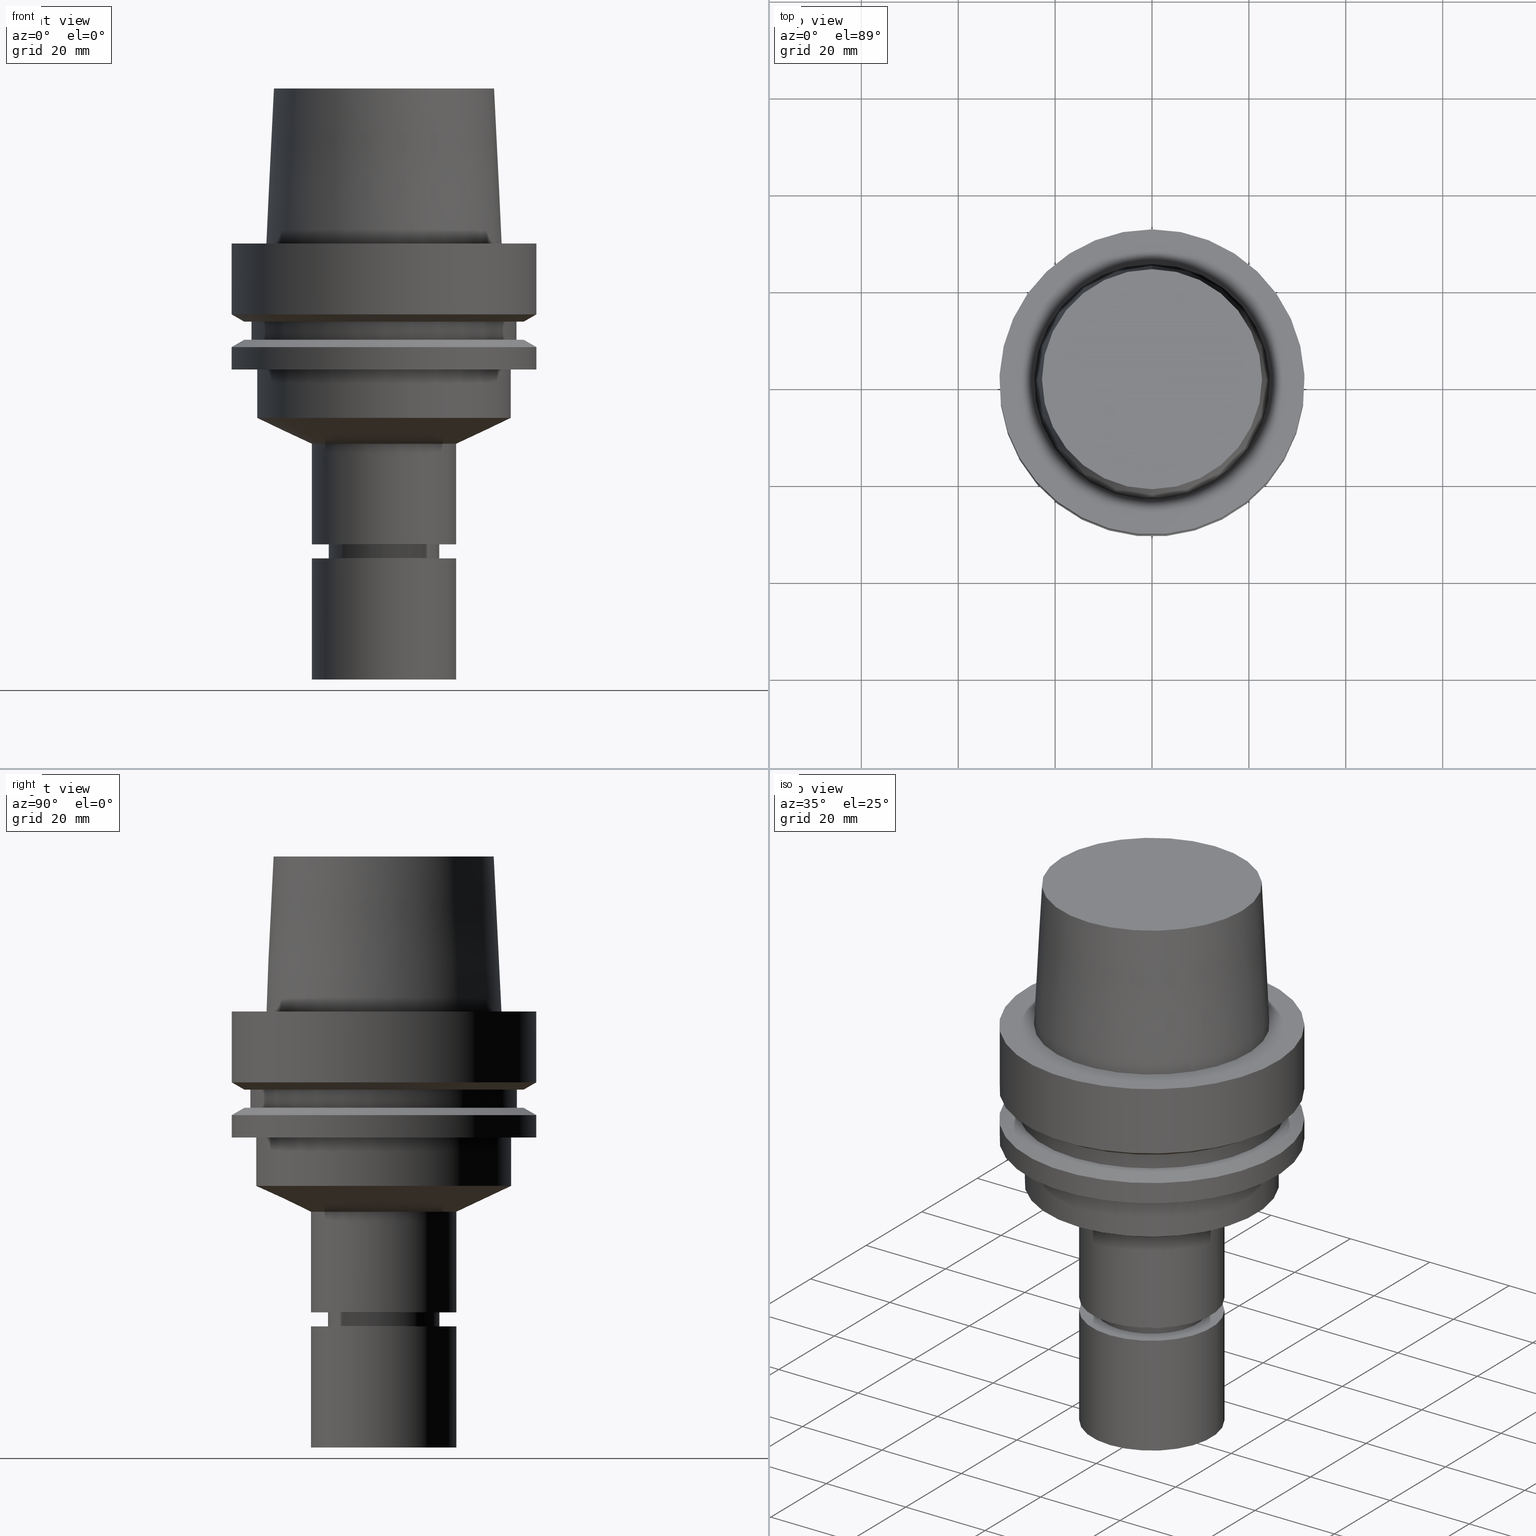
[diagram: canonical four-view strip — front | top / right | iso, engineering-drawing reading convention]
A machine part, canonical four-view strip (front | top / right | iso — engineering-drawing reading convention). The complete STEP part file that produces these views, byte-faithful:
ISO-10303-21;
HEADER;
FILE_DESCRIPTION((''),'1');
FILE_NAME('V:/90_\X2\53D65F9730C730FC30BF\X0\/00_\X2\6DE18DEF30C730FC30BF\X0\/ALL/HSK-BKUS\X2\52A05DE556F3\X0\_201801/HSK-A63-MEGAER/HSK-A63-MEGAER16-90NL.stp','2018-02-01T02:21:57',(''),(''),'Spatial Interop R21 SP3','Kubotek KeyCreator 2011 V10.0.2 (22737)',' ');
FILE_SCHEMA(('automotive_design'));
ENDSEC;
DATA;
#1=MECHANICAL_DESIGN_GEOMETRIC_PRESENTATION_REPRESENTATION(' ',(#14,#15,#16,#17,#18,#19,#20,#21,#22,#23,#24,#25,#26,#27,#28,#29,#30,#31,#32,#33,#34,#35,#36,#37,#38,#39,#40,#41,#42,#43,#44,#45,#46,#47,#48,#49,#50,#51,#52,#53,#54,#55,#56,#57,#58,#59),#10);
#2=PRODUCT_DEFINITION_CONTEXT('',#60,'design');
#3=APPLICATION_PROTOCOL_DEFINITION('INTERNATIONAL STANDARD','automotive_design',1994,#60);
#4=PRODUCT_CATEGORY_RELATIONSHIP('NONE','NONE',#61,#62);
#5=SHAPE_DEFINITION_REPRESENTATION(#63,#64);
#6=PRODUCT_DEFINITION_CONTEXT('',#65,'design');
#7=APPLICATION_PROTOCOL_DEFINITION('INTERNATIONAL STANDARD','automotive_design',1994,#65);
#8=PRODUCT_CATEGORY_RELATIONSHIP('NONE','NONE',#66,#67);
#9=SHAPE_DEFINITION_REPRESENTATION(#68,#69);
#10= (GEOMETRIC_REPRESENTATION_CONTEXT(3)GLOBAL_UNCERTAINTY_ASSIGNED_CONTEXT((#72))GLOBAL_UNIT_ASSIGNED_CONTEXT((#74,#75,#76))REPRESENTATION_CONTEXT('NONE','WORKSPACE'));
#14=STYLED_ITEM('',(#78),#79);
#15=STYLED_ITEM('',(#80,#81),#82);
#16=STYLED_ITEM('',(#83),#84);
#17=STYLED_ITEM('',(#85,#86),#87);
#18=STYLED_ITEM('',(#88),#89);
#19=STYLED_ITEM('',(#90,#91),#92);
#20=STYLED_ITEM('',(#93),#94);
#21=STYLED_ITEM('',(#95,#96),#97);
#22=STYLED_ITEM('',(#98),#99);
#23=STYLED_ITEM('',(#100,#101),#102);
#24=STYLED_ITEM('',(#103),#104);
#25=STYLED_ITEM('',(#105,#106),#107);
#26=STYLED_ITEM('',(#108),#109);
#27=STYLED_ITEM('',(#110),#111);
#28=STYLED_ITEM('',(#112),#113);
#29=STYLED_ITEM('',(#114,#115),#116);
#30=STYLED_ITEM('',(#117,#118),#119);
#31=STYLED_ITEM('',(#120,#121),#122);
#32=STYLED_ITEM('',(#123,#124),#125);
#33=STYLED_ITEM('',(#126,#127),#128);
#34=STYLED_ITEM('',(#129,#130),#131);
#35=STYLED_ITEM('',(#132),#133);
#36=STYLED_ITEM('',(#134,#135),#136);
#37=STYLED_ITEM('',(#137,#138),#139);
#38=STYLED_ITEM('',(#140),#141);
#39=STYLED_ITEM('',(#142),#143);
#40=STYLED_ITEM('',(#144,#145),#146);
#41=STYLED_ITEM('',(#147),#148);
#42=STYLED_ITEM('',(#149,#150),#151);
#43=STYLED_ITEM('',(#152,#153),#154);
#44=STYLED_ITEM('',(#155),#156);
#45=STYLED_ITEM('',(#157),#158);
#46=STYLED_ITEM('',(#159),#160);
#47=STYLED_ITEM('',(#161),#162);
#48=STYLED_ITEM('',(#163,#164),#165);
#49=STYLED_ITEM('',(#166,#167),#168);
#50=STYLED_ITEM('',(#169,#170),#171);
#51=STYLED_ITEM('',(#172),#173);
#52=STYLED_ITEM('',(#174,#175),#176);
#53=STYLED_ITEM('',(#177),#178);
#54=STYLED_ITEM('',(#179,#180),#181);
#55=STYLED_ITEM('',(#182,#183),#184);
#56=STYLED_ITEM('',(#185,#186),#187);
#57=STYLED_ITEM('',(#188),#189);
#58=STYLED_ITEM('',(#190),#191);
#59=STYLED_ITEM('',(#192,#193),#194);
#60=APPLICATION_CONTEXT(' ');
#61=PRODUCT_CATEGORY('part','NONE');
#62=PRODUCT_RELATED_PRODUCT_CATEGORY('detail',' ',(#195));
#63=PRODUCT_DEFINITION_SHAPE('NONE','NONE',#196);
#64=ADVANCED_BREP_SHAPE_REPRESENTATION('Unnamed[1]',(#125,#197),#10);
#65=APPLICATION_CONTEXT(' ');
#66=PRODUCT_CATEGORY('part','NONE');
#67=PRODUCT_RELATED_PRODUCT_CATEGORY('detail',' ',(#198));
#68=PRODUCT_DEFINITION_SHAPE('NONE','NONE',#199);
#69=ADVANCED_BREP_SHAPE_REPRESENTATION('Unnamed[1]',(#97,#200),#10);
#72=UNCERTAINTY_MEASURE_WITH_UNIT(LENGTH_MEASURE(1.0E-006),#74,'','');
#74= (CONVERSION_BASED_UNIT('MILLIMETRE',#203)LENGTH_UNIT()NAMED_UNIT(#206));
#75= (NAMED_UNIT(#208)PLANE_ANGLE_UNIT()SI_UNIT($,.RADIAN.));
#76= (NAMED_UNIT(#208)SOLID_ANGLE_UNIT()SI_UNIT($,.STERADIAN.));
#78=PRESENTATION_STYLE_ASSIGNMENT((#214));
#79=EDGE_CURVE('Unnamed[1]',#215,#215,#216,.T.);
#80=PRESENTATION_STYLE_ASSIGNMENT((#217));
#81=PRESENTATION_STYLE_ASSIGNMENT((#218));
#82=ADVANCED_FACE('Unnamed[1]',(#219,#220),#221,.T.);
#83=PRESENTATION_STYLE_ASSIGNMENT((#222));
#84=EDGE_CURVE('Unnamed[1]',#223,#223,#224,.T.);
#85=PRESENTATION_STYLE_ASSIGNMENT((#225));
#86=PRESENTATION_STYLE_ASSIGNMENT((#226));
#87=ADVANCED_FACE('Unnamed[1]',(#227,#228),#229,.T.);
#88=PRESENTATION_STYLE_ASSIGNMENT((#230));
#89=EDGE_CURVE('Unnamed[1]',#231,#231,#232,.T.);
#90=PRESENTATION_STYLE_ASSIGNMENT((#233));
#91=PRESENTATION_STYLE_ASSIGNMENT((#234));
#92=ADVANCED_FACE('Unnamed[1]',(#235),#236,.T.);
#93=PRESENTATION_STYLE_ASSIGNMENT((#237));
#94=EDGE_CURVE('Unnamed[1]',#238,#238,#239,.T.);
#95=PRESENTATION_STYLE_ASSIGNMENT((#240));
#96=PRESENTATION_STYLE_ASSIGNMENT((#241));
#97=MANIFOLD_SOLID_BREP('Unnamed[1]',#242);
#98=PRESENTATION_STYLE_ASSIGNMENT((#243));
#99=EDGE_CURVE('Unnamed[1]',#244,#244,#245,.T.);
#100=PRESENTATION_STYLE_ASSIGNMENT((#246));
#101=PRESENTATION_STYLE_ASSIGNMENT((#247));
#102=ADVANCED_FACE('Unnamed[1]',(#248,#249),#250,.T.);
#103=PRESENTATION_STYLE_ASSIGNMENT((#251));
#104=EDGE_CURVE('Unnamed[1]',#252,#252,#253,.T.);
#105=PRESENTATION_STYLE_ASSIGNMENT((#254));
#106=PRESENTATION_STYLE_ASSIGNMENT((#255));
#107=ADVANCED_FACE('Unnamed[1]',(#256,#257),#258,.T.);
#108=PRESENTATION_STYLE_ASSIGNMENT((#259));
#109=EDGE_CURVE('Unnamed[1]',#260,#260,#261,.T.);
#110=PRESENTATION_STYLE_ASSIGNMENT((#262));
#111=EDGE_CURVE('Unnamed[1]',#263,#263,#264,.T.);
#112=PRESENTATION_STYLE_ASSIGNMENT((#265));
#113=EDGE_CURVE('Unnamed[1]',#266,#266,#267,.T.);
#114=PRESENTATION_STYLE_ASSIGNMENT((#268));
#115=PRESENTATION_STYLE_ASSIGNMENT((#269));
#116=ADVANCED_FACE('Unnamed[1]',(#270,#271),#272,.T.);
#117=PRESENTATION_STYLE_ASSIGNMENT((#273));
#118=PRESENTATION_STYLE_ASSIGNMENT((#274));
#119=ADVANCED_FACE('Unnamed[1]',(#275,#276),#277,.T.);
#120=PRESENTATION_STYLE_ASSIGNMENT((#278));
#121=PRESENTATION_STYLE_ASSIGNMENT((#279));
#122=ADVANCED_FACE('Unnamed[1]',(#280,#281),#282,.T.);
#123=PRESENTATION_STYLE_ASSIGNMENT((#283));
#124=PRESENTATION_STYLE_ASSIGNMENT((#284));
#125=MANIFOLD_SOLID_BREP('Unnamed[1]',#285);
#126=PRESENTATION_STYLE_ASSIGNMENT((#286));
#127=PRESENTATION_STYLE_ASSIGNMENT((#287));
#128=ADVANCED_FACE('Unnamed[1]',(#288),#289,.T.);
#129=PRESENTATION_STYLE_ASSIGNMENT((#290));
#130=PRESENTATION_STYLE_ASSIGNMENT((#291));
#131=ADVANCED_FACE('Unnamed[1]',(#292,#293),#294,.T.);
#132=PRESENTATION_STYLE_ASSIGNMENT((#295));
#133=EDGE_CURVE('Unnamed[1]',#296,#296,#297,.T.);
#134=PRESENTATION_STYLE_ASSIGNMENT((#298));
#135=PRESENTATION_STYLE_ASSIGNMENT((#299));
#136=ADVANCED_FACE('Unnamed[1]',(#300,#301),#302,.T.);
#137=PRESENTATION_STYLE_ASSIGNMENT((#303));
#138=PRESENTATION_STYLE_ASSIGNMENT((#304));
#139=ADVANCED_FACE('Unnamed[1]',(#305,#306),#307,.T.);
#140=PRESENTATION_STYLE_ASSIGNMENT((#308));
#141=EDGE_CURVE('Unnamed[1]',#309,#309,#310,.T.);
#142=PRESENTATION_STYLE_ASSIGNMENT((#311));
#143=EDGE_CURVE('Unnamed[1]',#312,#312,#313,.T.);
#144=PRESENTATION_STYLE_ASSIGNMENT((#314));
#145=PRESENTATION_STYLE_ASSIGNMENT((#315));
#146=ADVANCED_FACE('Unnamed[1]',(#316,#317),#318,.T.);
#147=PRESENTATION_STYLE_ASSIGNMENT((#319));
#148=EDGE_CURVE('Unnamed[1]',#320,#320,#321,.T.);
#149=PRESENTATION_STYLE_ASSIGNMENT((#322));
#150=PRESENTATION_STYLE_ASSIGNMENT((#323));
#151=ADVANCED_FACE('Unnamed[1]',(#324,#325),#326,.T.);
#152=PRESENTATION_STYLE_ASSIGNMENT((#327));
#153=PRESENTATION_STYLE_ASSIGNMENT((#328));
#154=ADVANCED_FACE('Unnamed[1]',(#329,#330),#331,.T.);
#155=PRESENTATION_STYLE_ASSIGNMENT((#332));
#156=EDGE_CURVE('Unnamed[1]',#333,#333,#334,.T.);
#157=PRESENTATION_STYLE_ASSIGNMENT((#335));
#158=EDGE_CURVE('Unnamed[1]',#336,#336,#337,.T.);
#159=PRESENTATION_STYLE_ASSIGNMENT((#338));
#160=EDGE_CURVE('Unnamed[1]',#339,#339,#340,.T.);
#161=PRESENTATION_STYLE_ASSIGNMENT((#341));
#162=EDGE_CURVE('Unnamed[1]',#342,#342,#343,.T.);
#163=PRESENTATION_STYLE_ASSIGNMENT((#344));
#164=PRESENTATION_STYLE_ASSIGNMENT((#345));
#165=ADVANCED_FACE('Unnamed[1]',(#346,#347),#348,.T.);
#166=PRESENTATION_STYLE_ASSIGNMENT((#349));
#167=PRESENTATION_STYLE_ASSIGNMENT((#350));
#168=ADVANCED_FACE('Unnamed[1]',(#351,#352),#353,.T.);
#169=PRESENTATION_STYLE_ASSIGNMENT((#354));
#170=PRESENTATION_STYLE_ASSIGNMENT((#355));
#171=ADVANCED_FACE('Unnamed[1]',(#356,#357),#358,.T.);
#172=PRESENTATION_STYLE_ASSIGNMENT((#359));
#173=EDGE_CURVE('Unnamed[1]',#360,#360,#361,.T.);
#174=PRESENTATION_STYLE_ASSIGNMENT((#362));
#175=PRESENTATION_STYLE_ASSIGNMENT((#363));
#176=ADVANCED_FACE('Unnamed[1]',(#364,#365),#366,.T.);
#177=PRESENTATION_STYLE_ASSIGNMENT((#367));
#178=EDGE_CURVE('Unnamed[1]',#368,#368,#369,.T.);
#179=PRESENTATION_STYLE_ASSIGNMENT((#370));
#180=PRESENTATION_STYLE_ASSIGNMENT((#371));
#181=ADVANCED_FACE('Unnamed[1]',(#372,#373),#374,.T.);
#182=PRESENTATION_STYLE_ASSIGNMENT((#375));
#183=PRESENTATION_STYLE_ASSIGNMENT((#376));
#184=ADVANCED_FACE('Unnamed[1]',(#377,#378),#379,.T.);
#185=PRESENTATION_STYLE_ASSIGNMENT((#380));
#186=PRESENTATION_STYLE_ASSIGNMENT((#381));
#187=ADVANCED_FACE('Unnamed[1]',(#382),#383,.T.);
#188=PRESENTATION_STYLE_ASSIGNMENT((#384));
#189=EDGE_CURVE('Unnamed[1]',#385,#385,#386,.T.);
#190=PRESENTATION_STYLE_ASSIGNMENT((#387));
#191=EDGE_CURVE('Unnamed[1]',#388,#388,#389,.T.);
#192=PRESENTATION_STYLE_ASSIGNMENT((#390));
#193=PRESENTATION_STYLE_ASSIGNMENT((#391));
#194=ADVANCED_FACE('Unnamed[1]',(#392),#393,.T.);
#195=PRODUCT('Unnamed[1]','Unnamed[1]','PART-Unnamed[1]-DESC',(#394));
#196=PRODUCT_DEFINITION('NONE','NONE',#395,#2);
#197=AXIS2_PLACEMENT_3D('',#396,#397,#398);
#198=PRODUCT('Unnamed[1]','Unnamed[1]','PART-Unnamed[1]-DESC',(#399));
#199=PRODUCT_DEFINITION('NONE','NONE',#400,#6);
#200=AXIS2_PLACEMENT_3D('',#401,#402,#403);
#203=LENGTH_MEASURE_WITH_UNIT(LENGTH_MEASURE(1.0),#404);
#206=DIMENSIONAL_EXPONENTS(1.0,0.0,0.0,0.0,0.0,0.0,0.0);
#208=DIMENSIONAL_EXPONENTS(0.0,0.0,0.0,0.0,0.0,0.0,0.0);
#214=CURVE_STYLE('',#405,POSITIVE_LENGTH_MEASURE(1000.0),#406);
#215=VERTEX_POINT('',#407);
#216=CIRCLE('',#408,9.89999999999962);
#217=SURFACE_STYLE_USAGE(.BOTH.,#409);
#218=CURVE_STYLE('',#410,POSITIVE_LENGTH_MEASURE(1000.0),#411);
#219=FACE_BOUND('',#412,.T.);
#220=FACE_BOUND('',#413,.T.);
#221=CYLINDRICAL_SURFACE('',#414,26.3);
#222=CURVE_STYLE('',#415,POSITIVE_LENGTH_MEASURE(1000.0),#416);
#223=VERTEX_POINT('',#417);
#224=CIRCLE('',#418,10.9999999999999);
#225=SURFACE_STYLE_USAGE(.BOTH.,#419);
#226=CURVE_STYLE('',#420,POSITIVE_LENGTH_MEASURE(1000.0),#421);
#227=FACE_BOUND('',#422,.T.);
#228=FACE_BOUND('',#423,.T.);
#229=CYLINDRICAL_SURFACE('',#424,27.4999999999994);
#230=CURVE_STYLE('',#425,POSITIVE_LENGTH_MEASURE(1000.0),#426);
#231=VERTEX_POINT('',#427);
#232=CIRCLE('',#428,28.8975952641919);
#233=SURFACE_STYLE_USAGE(.BOTH.,#429);
#234=CURVE_STYLE('',#430,POSITIVE_LENGTH_MEASURE(1000.0),#431);
#235=FACE_OUTER_BOUND('',#432,.T.);
#236=PLANE('',#433);
#237=CURVE_STYLE('',#434,POSITIVE_LENGTH_MEASURE(1000.0),#435);
#238=VERTEX_POINT('',#436);
#239=CIRCLE('',#437,31.5000000000001);
#240=SURFACE_STYLE_USAGE(.BOTH.,#438);
#241=CURVE_STYLE('',#439,POSITIVE_LENGTH_MEASURE(1000.0),#440);
#242=CLOSED_SHELL('',(#92,#128,#136));
#243=CURVE_STYLE('',#441,POSITIVE_LENGTH_MEASURE(1000.0),#442);
#244=VERTEX_POINT('',#443);
#245=CIRCLE('',#444,27.4999999999989);
#246=SURFACE_STYLE_USAGE(.BOTH.,#445);
#247=CURVE_STYLE('',#446,POSITIVE_LENGTH_MEASURE(1000.0),#447);
#248=FACE_BOUND('',#448,.T.);
#249=FACE_BOUND('',#449,.T.);
#250=CYLINDRICAL_SURFACE('',#450,31.4999999999999);
#251=CURVE_STYLE('',#451,POSITIVE_LENGTH_MEASURE(1000.0),#452);
#252=VERTEX_POINT('',#453);
#253=CIRCLE('',#454,15.0000000000002);
#254=SURFACE_STYLE_USAGE(.BOTH.,#455);
#255=CURVE_STYLE('',#456,POSITIVE_LENGTH_MEASURE(1000.0),#457);
#256=FACE_BOUND('',#458,.T.);
#257=FACE_BOUND('',#459,.T.);
#258=CONICAL_SURFACE('',#460,23.515,0.0499583957219433);
#259=CURVE_STYLE('',#461,POSITIVE_LENGTH_MEASURE(1000.0),#462);
#260=VERTEX_POINT('',#463);
#261=CIRCLE('',#464,15.0);
#262=CURVE_STYLE('',#465,POSITIVE_LENGTH_MEASURE(1000.0),#466);
#263=VERTEX_POINT('',#467);
#264=CIRCLE('',#468,11.4999999999907);
#265=CURVE_STYLE('',#469,POSITIVE_LENGTH_MEASURE(1000.0),#470);
#266=VERTEX_POINT('',#471);
#267=CIRCLE('',#472,26.3);
#268=SURFACE_STYLE_USAGE(.BOTH.,#473);
#269=CURVE_STYLE('',#474,POSITIVE_LENGTH_MEASURE(1000.0),#475);
#270=FACE_BOUND('',#476,.T.);
#271=FACE_BOUND('',#477,.T.);
#272=CONICAL_SURFACE('',#478,20.6500000000001,1.13007312047941);
#273=SURFACE_STYLE_USAGE(.BOTH.,#479);
#274=CURVE_STYLE('',#480,POSITIVE_LENGTH_MEASURE(1000.0),#481);
#275=FACE_BOUND('',#482,.T.);
#276=FACE_BOUND('',#483,.T.);
#277=CONICAL_SURFACE('',#484,11.250000000001,1.04719755118896);
#278=SURFACE_STYLE_USAGE(.BOTH.,#485);
#279=CURVE_STYLE('',#486,POSITIVE_LENGTH_MEASURE(1000.0),#487);
#280=FACE_BOUND('',#488,.T.);
#281=FACE_BOUND('',#489,.T.);
#282=CYLINDRICAL_SURFACE('',#490,31.5);
#283=SURFACE_STYLE_USAGE(.BOTH.,#491);
#284=CURVE_STYLE('',#492,POSITIVE_LENGTH_MEASURE(1000.0),#493);
#285=CLOSED_SHELL('',(#194,#184,#154,#119,#146,#131,#181,#116,#82,#139,#102,#165,#151,#87,#171,#168,#122,#176,#107,#187));
#286=SURFACE_STYLE_USAGE(.BOTH.,#494);
#287=CURVE_STYLE('',#495,POSITIVE_LENGTH_MEASURE(1000.0),#496);
#288=FACE_OUTER_BOUND('',#497,.T.);
#289=PLANE('',#498);
#290=SURFACE_STYLE_USAGE(.BOTH.,#499);
#291=CURVE_STYLE('',#500,POSITIVE_LENGTH_MEASURE(1000.0),#501);
#292=FACE_OUTER_BOUND('',#502,.T.);
#293=FACE_BOUND('',#503,.T.);
#294=PLANE('',#504);
#295=CURVE_STYLE('',#505,POSITIVE_LENGTH_MEASURE(1000.0),#506);
#296=VERTEX_POINT('',#507);
#297=CIRCLE('',#508,15.0000000000001);
#298=SURFACE_STYLE_USAGE(.BOTH.,#509);
#299=CURVE_STYLE('',#510,POSITIVE_LENGTH_MEASURE(1000.0),#511);
#300=FACE_BOUND('',#512,.T.);
#301=FACE_BOUND('',#513,.T.);
#302=CYLINDRICAL_SURFACE('',#514,15.0);
#303=SURFACE_STYLE_USAGE(.BOTH.,#515);
#304=CURVE_STYLE('',#516,POSITIVE_LENGTH_MEASURE(1000.0),#517);
#305=FACE_OUTER_BOUND('',#518,.T.);
#306=FACE_BOUND('',#519,.T.);
#307=PLANE('',#520);
#308=CURVE_STYLE('',#521,POSITIVE_LENGTH_MEASURE(1000.0),#522);
#309=VERTEX_POINT('',#523);
#310=CIRCLE('',#524,15.0000000000001);
#311=CURVE_STYLE('',#525,POSITIVE_LENGTH_MEASURE(1000.0),#526);
#312=VERTEX_POINT('',#527);
#313=CIRCLE('',#528,31.4999999999998);
#314=SURFACE_STYLE_USAGE(.BOTH.,#529);
#315=CURVE_STYLE('',#530,POSITIVE_LENGTH_MEASURE(1000.0),#531);
#316=FACE_BOUND('',#532,.T.);
#317=FACE_BOUND('',#533,.T.);
#318=CYLINDRICAL_SURFACE('',#534,11.4999999999964);
#319=CURVE_STYLE('',#535,POSITIVE_LENGTH_MEASURE(1000.0),#536);
#320=VERTEX_POINT('',#537);
#321=CIRCLE('',#538,31.5);
#322=SURFACE_STYLE_USAGE(.BOTH.,#539);
#323=CURVE_STYLE('',#540,POSITIVE_LENGTH_MEASURE(1000.0),#541);
#324=FACE_BOUND('',#542,.T.);
#325=FACE_OUTER_BOUND('',#543,.T.);
#326=PLANE('',#544);
#327=SURFACE_STYLE_USAGE(.BOTH.,#545);
#328=CURVE_STYLE('',#546,POSITIVE_LENGTH_MEASURE(1000.0),#547);
#329=FACE_BOUND('',#548,.T.);
#330=FACE_BOUND('',#549,.T.);
#331=CYLINDRICAL_SURFACE('',#550,11.0000000000001);
#332=CURVE_STYLE('',#551,POSITIVE_LENGTH_MEASURE(1000.0),#552);
#333=VERTEX_POINT('',#553);
#334=CIRCLE('',#554,11.0000000000003);
#335=CURVE_STYLE('',#555,POSITIVE_LENGTH_MEASURE(1000.0),#556);
#336=VERTEX_POINT('',#557);
#337=CIRCLE('',#558,24.315);
#338=CURVE_STYLE('',#559,POSITIVE_LENGTH_MEASURE(1000.0),#560);
#339=VERTEX_POINT('',#561);
#340=CIRCLE('',#562,11.5000000000021);
#341=CURVE_STYLE('',#563,POSITIVE_LENGTH_MEASURE(1000.0),#564);
#342=VERTEX_POINT('',#565);
#343=CIRCLE('',#566,31.5);
#344=SURFACE_STYLE_USAGE(.BOTH.,#567);
#345=CURVE_STYLE('',#568,POSITIVE_LENGTH_MEASURE(1000.0),#569);
#346=FACE_BOUND('',#570,.T.);
#347=FACE_BOUND('',#571,.T.);
#348=CONICAL_SURFACE('',#572,30.1987976320959,1.04719755119657);
#349=SURFACE_STYLE_USAGE(.BOTH.,#573);
#350=CURVE_STYLE('',#574,POSITIVE_LENGTH_MEASURE(1000.0),#575);
#351=FACE_BOUND('',#576,.T.);
#352=FACE_BOUND('',#577,.T.);
#353=CONICAL_SURFACE('',#578,30.1987976320959,1.04719755119657);
#354=SURFACE_STYLE_USAGE(.BOTH.,#579);
#355=CURVE_STYLE('',#580,POSITIVE_LENGTH_MEASURE(1000.0),#581);
#356=FACE_OUTER_BOUND('',#582,.T.);
#357=FACE_BOUND('',#583,.T.);
#358=PLANE('',#584);
#359=CURVE_STYLE('',#585,POSITIVE_LENGTH_MEASURE(1000.0),#586);
#360=VERTEX_POINT('',#587);
#361=CIRCLE('',#588,28.8975952641919);
#362=SURFACE_STYLE_USAGE(.BOTH.,#589);
#363=CURVE_STYLE('',#590,POSITIVE_LENGTH_MEASURE(1000.0),#591);
#364=FACE_BOUND('',#592,.T.);
#365=FACE_OUTER_BOUND('',#593,.T.);
#366=PLANE('',#594);
#367=CURVE_STYLE('',#595,POSITIVE_LENGTH_MEASURE(1000.0),#596);
#368=VERTEX_POINT('',#597);
#369=CIRCLE('',#598,26.3);
#370=SURFACE_STYLE_USAGE(.BOTH.,#599);
#371=CURVE_STYLE('',#600,POSITIVE_LENGTH_MEASURE(1000.0),#601);
#372=FACE_BOUND('',#602,.T.);
#373=FACE_BOUND('',#603,.T.);
#374=CYLINDRICAL_SURFACE('',#604,15.0000000000002);
#375=SURFACE_STYLE_USAGE(.BOTH.,#605);
#376=CURVE_STYLE('',#606,POSITIVE_LENGTH_MEASURE(1000.0),#607);
#377=FACE_BOUND('',#608,.T.);
#378=FACE_BOUND('',#609,.T.);
#379=CONICAL_SURFACE('',#610,10.4499999999999,0.523598775598224);
#380=SURFACE_STYLE_USAGE(.BOTH.,#611);
#381=CURVE_STYLE('',#612,POSITIVE_LENGTH_MEASURE(1000.0),#613);
#382=FACE_OUTER_BOUND('',#614,.T.);
#383=PLANE('',#615);
#384=CURVE_STYLE('',#616,POSITIVE_LENGTH_MEASURE(1000.0),#617);
#385=VERTEX_POINT('',#618);
#386=CIRCLE('',#619,22.715);
#387=CURVE_STYLE('',#620,POSITIVE_LENGTH_MEASURE(1000.0),#621);
#388=VERTEX_POINT('',#622);
#389=CIRCLE('',#623,27.5);
#390=SURFACE_STYLE_USAGE(.BOTH.,#624);
#391=CURVE_STYLE('',#625,POSITIVE_LENGTH_MEASURE(1000.0),#626);
#392=FACE_OUTER_BOUND('',#627,.T.);
#393=PLANE('',#628);
#394=PRODUCT_CONTEXT('',#60,'mechanical');
#395=PRODUCT_DEFINITION_FORMATION_WITH_SPECIFIED_SOURCE(' ','NONE',#195,.NOT_KNOWN.);
#396=CARTESIAN_POINT('',(0.0,0.0,0.0));
#397=DIRECTION('',(0.0,0.0,1.0));
#398=DIRECTION('',(1.0,0.0,0.0));
#399=PRODUCT_CONTEXT('',#65,'mechanical');
#400=PRODUCT_DEFINITION_FORMATION_WITH_SPECIFIED_SOURCE(' ','NONE',#198,.NOT_KNOWN.);
#401=CARTESIAN_POINT('',(0.0,0.0,0.0));
#402=DIRECTION('',(0.0,0.0,1.0));
#403=DIRECTION('',(1.0,0.0,0.0));
#404= (NAMED_UNIT(#206)LENGTH_UNIT()SI_UNIT(.MILLI.,.METRE.));
#405=DRAUGHTING_PRE_DEFINED_CURVE_FONT('continuous');
#406=COLOUR_RGB('',0.0,1.0,0.0);
#407=CARTESIAN_POINT('',(4.9720660045382E-015,9.89999999999963,-81.1999999999991));
#408=AXIS2_PLACEMENT_3D('',#630,#631,#632);
#409=SURFACE_SIDE_STYLE('',(#633));
#410=DRAUGHTING_PRE_DEFINED_CURVE_FONT('continuous');
#411=COLOUR_RGB('',0.0,1.0,0.0);
#412=EDGE_LOOP('',(#634));
#413=EDGE_LOOP('',(#635));
#414=AXIS2_PLACEMENT_3D('',#636,#637,#638);
#415=DRAUGHTING_PRE_DEFINED_CURVE_FONT('continuous');
#416=COLOUR_RGB('',0.0,1.0,0.0);
#417=CARTESIAN_POINT('',(4.17604558509238E-015,10.9999999999999,-68.1999999999985));
#418=AXIS2_PLACEMENT_3D('',#639,#640,#641);
#419=SURFACE_SIDE_STYLE('',(#642));
#420=DRAUGHTING_PRE_DEFINED_CURVE_FONT('continuous');
#421=COLOUR_RGB('',0.0,1.0,0.0);
#422=EDGE_LOOP('',(#643));
#423=EDGE_LOOP('',(#644));
#424=AXIS2_PLACEMENT_3D('',#645,#646,#647);
#425=DRAUGHTING_PRE_DEFINED_CURVE_FONT('continuous');
#426=COLOUR_RGB('',0.0,1.0,0.0);
#427=CARTESIAN_POINT('',(1.21699275665268E-015,28.8975952641919,-19.875));
#428=AXIS2_PLACEMENT_3D('',#648,#649,#650);
#429=SURFACE_SIDE_STYLE('',(#651));
#430=DRAUGHTING_PRE_DEFINED_CURVE_FONT('continuous');
#431=COLOUR_RGB('',0.0,1.0,0.0);
#432=EDGE_LOOP('',(#652));
#433=AXIS2_PLACEMENT_3D('',#653,#654,#655);
#434=DRAUGHTING_PRE_DEFINED_CURVE_FONT('continuous');
#435=COLOUR_RGB('',0.0,1.0,0.0);
#436=CARTESIAN_POINT('',(-3.88267476788467E-031,31.5000000000001,3.85763741731417E-015));
#437=AXIS2_PLACEMENT_3D('',#656,#657,#658);
#438=SURFACE_SIDE_STYLE('',(#659));
#439=DRAUGHTING_PRE_DEFINED_CURVE_FONT('continuous');
#440=COLOUR_RGB('',0.0,1.0,0.0);
#441=DRAUGHTING_PRE_DEFINED_CURVE_FONT('continuous');
#442=COLOUR_RGB('',0.0,1.0,0.0);
#443=CARTESIAN_POINT('',(1.21699275665276E-015,27.4999999999989,-19.8750000000013));
#444=AXIS2_PLACEMENT_3D('',#660,#661,#662);
#445=SURFACE_SIDE_STYLE('',(#663));
#446=DRAUGHTING_PRE_DEFINED_CURVE_FONT('continuous');
#447=COLOUR_RGB('',0.0,1.0,0.0);
#448=EDGE_LOOP('',(#664));
#449=EDGE_LOOP('',(#665));
#450=AXIS2_PLACEMENT_3D('',#666,#667,#668);
#451=DRAUGHTING_PRE_DEFINED_CURVE_FONT('continuous');
#452=COLOUR_RGB('',0.0,1.0,0.0);
#453=CARTESIAN_POINT('',(3.80252831835845E-015,15.0000000000002,-62.1000001144153));
#454=AXIS2_PLACEMENT_3D('',#669,#670,#671);
#455=SURFACE_SIDE_STYLE('',(#672));
#456=DRAUGHTING_PRE_DEFINED_CURVE_FONT('continuous');
#457=COLOUR_RGB('',0.0,1.0,0.0);
#458=EDGE_LOOP('',(#673));
#459=EDGE_LOOP('',(#674));
#460=AXIS2_PLACEMENT_3D('',#675,#676,#677);
#461=DRAUGHTING_PRE_DEFINED_CURVE_FONT('continuous');
#462=COLOUR_RGB('',0.0,1.0,0.0);
#463=CARTESIAN_POINT('',(5.51091059616309E-015,15.0,-90.0));
#464=AXIS2_PLACEMENT_3D('',#678,#679,#680);
#465=DRAUGHTING_PRE_DEFINED_CURVE_FONT('continuous');
#466=COLOUR_RGB('',0.0,1.0,0.0);
#467=CARTESIAN_POINT('',(3.80252831835845E-015,11.4999999999907,-62.1000001144153));
#468=AXIS2_PLACEMENT_3D('',#681,#682,#683);
#469=DRAUGHTING_PRE_DEFINED_CURVE_FONT('continuous');
#470=COLOUR_RGB('',0.0,1.0,0.0);
#471=CARTESIAN_POINT('',(2.20436423846526E-015,26.3,-36.0000000000004));
#472=AXIS2_PLACEMENT_3D('',#684,#685,#686);
#473=SURFACE_SIDE_STYLE('',(#687));
#474=DRAUGHTING_PRE_DEFINED_CURVE_FONT('continuous');
#475=COLOUR_RGB('',0.0,1.0,0.0);
#476=EDGE_LOOP('',(#688));
#477=EDGE_LOOP('',(#689));
#478=AXIS2_PLACEMENT_3D('',#690,#691,#692);
#479=SURFACE_SIDE_STYLE('',(#693));
#480=DRAUGHTING_PRE_DEFINED_CURVE_FONT('continuous');
#481=COLOUR_RGB('',0.0,1.0,0.0);
#482=EDGE_LOOP('',(#694));
#483=EDGE_LOOP('',(#695));
#484=AXIS2_PLACEMENT_3D('',#696,#697,#698);
#485=SURFACE_SIDE_STYLE('',(#699));
#486=DRAUGHTING_PRE_DEFINED_CURVE_FONT('continuous');
#487=COLOUR_RGB('',0.0,1.0,0.0);
#488=EDGE_LOOP('',(#700));
#489=EDGE_LOOP('',(#701));
#490=AXIS2_PLACEMENT_3D('',#702,#703,#704);
#491=SURFACE_SIDE_STYLE('',(#705));
#492=DRAUGHTING_PRE_DEFINED_CURVE_FONT('continuous');
#493=COLOUR_RGB('',0.0,1.0,0.0);
#494=SURFACE_SIDE_STYLE('',(#706));
#495=DRAUGHTING_PRE_DEFINED_CURVE_FONT('continuous');
#496=COLOUR_RGB('',0.0,1.0,0.0);
#497=EDGE_LOOP('',(#707));
#498=AXIS2_PLACEMENT_3D('',#708,#709,#710);
#499=SURFACE_SIDE_STYLE('',(#711));
#500=DRAUGHTING_PRE_DEFINED_CURVE_FONT('continuous');
#501=COLOUR_RGB('',0.0,1.0,0.0);
#502=EDGE_LOOP('',(#712));
#503=EDGE_LOOP('',(#713));
#504=AXIS2_PLACEMENT_3D('',#714,#715,#716);
#505=DRAUGHTING_PRE_DEFINED_CURVE_FONT('continuous');
#506=COLOUR_RGB('',0.0,1.0,0.0);
#507=CARTESIAN_POINT('',(3.9801020972289E-015,15.0000000000001,-65.0));
#508=AXIS2_PLACEMENT_3D('',#717,#718,#719);
#509=SURFACE_SIDE_STYLE('',(#720));
#510=DRAUGHTING_PRE_DEFINED_CURVE_FONT('continuous');
#511=COLOUR_RGB('',0.0,1.0,0.0);
#512=EDGE_LOOP('',(#721));
#513=EDGE_LOOP('',(#722));
#514=AXIS2_PLACEMENT_3D('',#723,#724,#725);
#515=SURFACE_SIDE_STYLE('',(#726));
#516=DRAUGHTING_PRE_DEFINED_CURVE_FONT('continuous');
#517=COLOUR_RGB('',0.0,1.0,0.0);
#518=EDGE_LOOP('',(#727));
#519=EDGE_LOOP('',(#728));
#520=AXIS2_PLACEMENT_3D('',#729,#730,#731);
#521=DRAUGHTING_PRE_DEFINED_CURVE_FONT('continuous');
#522=COLOUR_RGB('',0.0,1.0,0.0);
#523=CARTESIAN_POINT('',(2.5307207827018E-015,15.0000000000001,-41.329806838409));
#524=AXIS2_PLACEMENT_3D('',#732,#733,#734);
#525=DRAUGHTING_PRE_DEFINED_CURVE_FONT('continuous');
#526=COLOUR_RGB('',0.0,1.0,0.0);
#527=CARTESIAN_POINT('',(1.59204083889155E-015,31.4999999999998,-25.9999999999999));
#528=AXIS2_PLACEMENT_3D('',#735,#736,#737);
#529=SURFACE_SIDE_STYLE('',(#738));
#530=DRAUGHTING_PRE_DEFINED_CURVE_FONT('continuous');
#531=COLOUR_RGB('',0.0,1.0,0.0);
#532=EDGE_LOOP('',(#739));
#533=EDGE_LOOP('',(#740));
#534=AXIS2_PLACEMENT_3D('',#741,#742,#743);
#535=DRAUGHTING_PRE_DEFINED_CURVE_FONT('continuous');
#536=COLOUR_RGB('',0.0,1.0,0.0);
#537=CARTESIAN_POINT('',(8.95369947681261E-016,31.5,-14.6225009252407));
#538=AXIS2_PLACEMENT_3D('',#744,#745,#746);
#539=SURFACE_SIDE_STYLE('',(#747));
#540=DRAUGHTING_PRE_DEFINED_CURVE_FONT('continuous');
#541=COLOUR_RGB('',0.0,1.0,0.0);
#542=EDGE_LOOP('',(#748));
#543=EDGE_LOOP('',(#749));
#544=AXIS2_PLACEMENT_3D('',#750,#751,#752);
#545=SURFACE_SIDE_STYLE('',(#753));
#546=DRAUGHTING_PRE_DEFINED_CURVE_FONT('continuous');
#547=COLOUR_RGB('',0.0,1.0,0.0);
#548=EDGE_LOOP('',(#754));
#549=EDGE_LOOP('',(#755));
#550=AXIS2_PLACEMENT_3D('',#756,#757,#758);
#551=DRAUGHTING_PRE_DEFINED_CURVE_FONT('continuous');
#552=COLOUR_RGB('',0.0,1.0,0.0);
#553=CARTESIAN_POINT('',(4.85540272827837E-015,11.0000000000003,-79.2947441116719));
#554=AXIS2_PLACEMENT_3D('',#759,#760,#761);
#555=DRAUGHTING_PRE_DEFINED_CURVE_FONT('continuous');
#556=COLOUR_RGB('',0.0,1.0,0.0);
#557=CARTESIAN_POINT('',(-2.99705514225764E-031,24.315,2.97772869212679E-015));
#558=AXIS2_PLACEMENT_3D('',#762,#763,#764);
#559=DRAUGHTING_PRE_DEFINED_CURVE_FONT('continuous');
#560=COLOUR_RGB('',0.0,1.0,0.0);
#561=CARTESIAN_POINT('',(4.15836933111324E-015,11.5000000000021,-67.9113248653973));
#562=AXIS2_PLACEMENT_3D('',#765,#766,#767);
#563=DRAUGHTING_PRE_DEFINED_CURVE_FONT('continuous');
#564=COLOUR_RGB('',0.0,1.0,0.0);
#565=CARTESIAN_POINT('',(1.30899429078397E-015,31.5,-21.3774990747592));
#566=AXIS2_PLACEMENT_3D('',#768,#769,#770);
#567=SURFACE_SIDE_STYLE('',(#771));
#568=DRAUGHTING_PRE_DEFINED_CURVE_FONT('continuous');
#569=COLOUR_RGB('',0.0,1.0,0.0);
#570=EDGE_LOOP('',(#772));
#571=EDGE_LOOP('',(#773));
#572=AXIS2_PLACEMENT_3D('',#774,#775,#776);
#573=SURFACE_SIDE_STYLE('',(#777));
#574=DRAUGHTING_PRE_DEFINED_CURVE_FONT('continuous');
#575=COLOUR_RGB('',0.0,1.0,0.0);
#576=EDGE_LOOP('',(#778));
#577=EDGE_LOOP('',(#779));
#578=AXIS2_PLACEMENT_3D('',#780,#781,#782);
#579=SURFACE_SIDE_STYLE('',(#783));
#580=DRAUGHTING_PRE_DEFINED_CURVE_FONT('continuous');
#581=COLOUR_RGB('',0.0,1.0,0.0);
#582=EDGE_LOOP('',(#784));
#583=EDGE_LOOP('',(#785));
#584=AXIS2_PLACEMENT_3D('',#786,#787,#788);
#585=DRAUGHTING_PRE_DEFINED_CURVE_FONT('continuous');
#586=COLOUR_RGB('',0.0,1.0,0.0);
#587=CARTESIAN_POINT('',(9.87371481812551E-016,28.8975952641919,-16.125));
#588=AXIS2_PLACEMENT_3D('',#789,#790,#791);
#589=SURFACE_SIDE_STYLE('',(#792));
#590=DRAUGHTING_PRE_DEFINED_CURVE_FONT('continuous');
#591=COLOUR_RGB('',0.0,1.0,0.0);
#592=EDGE_LOOP('',(#793));
#593=EDGE_LOOP('',(#794));
#594=AXIS2_PLACEMENT_3D('',#795,#796,#797);
#595=DRAUGHTING_PRE_DEFINED_CURVE_FONT('continuous');
#596=COLOUR_RGB('',0.0,1.0,0.0);
#597=CARTESIAN_POINT('',(1.59204083889154E-015,26.3,-25.9999999999997));
#598=AXIS2_PLACEMENT_3D('',#798,#799,#800);
#599=SURFACE_SIDE_STYLE('',(#801));
#600=DRAUGHTING_PRE_DEFINED_CURVE_FONT('continuous');
#601=COLOUR_RGB('',0.0,1.0,0.0);
#602=EDGE_LOOP('',(#802));
#603=EDGE_LOOP('',(#803));
#604=AXIS2_PLACEMENT_3D('',#804,#805,#806);
#605=SURFACE_SIDE_STYLE('',(#807));
#606=DRAUGHTING_PRE_DEFINED_CURVE_FONT('continuous');
#607=COLOUR_RGB('',0.0,1.0,0.0);
#608=EDGE_LOOP('',(#808));
#609=EDGE_LOOP('',(#809));
#610=AXIS2_PLACEMENT_3D('',#810,#811,#812);
#611=SURFACE_SIDE_STYLE('',(#813));
#612=DRAUGHTING_PRE_DEFINED_CURVE_FONT('continuous');
#613=COLOUR_RGB('',0.0,1.0,0.0);
#614=EDGE_LOOP('',(#814));
#615=AXIS2_PLACEMENT_3D('',#815,#816,#817);
#616=DRAUGHTING_PRE_DEFINED_CURVE_FONT('continuous');
#617=COLOUR_RGB('',0.0,1.0,0.0);
#618=CARTESIAN_POINT('',(-1.95943487863576E-015,22.715,32.0));
#619=AXIS2_PLACEMENT_3D('',#818,#819,#820);
#620=DRAUGHTING_PRE_DEFINED_CURVE_FONT('continuous');
#621=COLOUR_RGB('',0.0,1.0,0.0);
#622=CARTESIAN_POINT('',(9.87371481812537E-016,27.5,-16.1249999999997));
#623=AXIS2_PLACEMENT_3D('',#821,#822,#823);
#624=SURFACE_SIDE_STYLE('',(#824));
#625=DRAUGHTING_PRE_DEFINED_CURVE_FONT('continuous');
#626=COLOUR_RGB('',0.0,1.0,0.0);
#627=EDGE_LOOP('',(#825));
#628=AXIS2_PLACEMENT_3D('',#826,#827,#828);
#630=CARTESIAN_POINT('',(4.9720660045382E-015,9.9441320090764E-015,-81.1999999999991));
#631=DIRECTION('',(-6.12323399573677E-017,-1.22464679914735E-016,1.0));
#632=DIRECTION('',(-1.23259516440783E-032,1.0,1.22464679914735E-016));
#633=SURFACE_STYLE_FILL_AREA(#829);
#634=ORIENTED_EDGE('',*,*,#178,.F.);
#635=ORIENTED_EDGE('',*,*,#113,.T.);
#636=CARTESIAN_POINT('',(1.8982025386784E-015,3.7964050773568E-015,-31.0000000000001));
#637=DIRECTION('',(-6.12323399573677E-017,-1.22464679914735E-016,1.0));
#638=DIRECTION('',(-1.23259516440783E-032,1.0,1.22464679914735E-016));
#639=CARTESIAN_POINT('',(4.17604558509238E-015,8.35209117018476E-015,-68.1999999999985));
#640=DIRECTION('',(-6.12323399573676E-017,-1.22464679914735E-016,1.0));
#641=DIRECTION('',(-1.23259516440783E-032,1.0,1.22464679914735E-016));
#642=SURFACE_STYLE_FILL_AREA(#830);
#643=ORIENTED_EDGE('',*,*,#191,.F.);
#644=ORIENTED_EDGE('',*,*,#99,.T.);
#645=CARTESIAN_POINT('',(1.10218211923265E-015,2.2043642384653E-015,-18.0000000000005));
#646=DIRECTION('',(-6.12323399573677E-017,-1.22464679914735E-016,1.0));
#647=DIRECTION('',(-1.23259516440783E-032,1.0,1.22464679914735E-016));
#648=CARTESIAN_POINT('',(1.21699275665268E-015,2.43398551330536E-015,-19.875));
#649=DIRECTION('',(-6.12323399573677E-017,-1.22464679914735E-016,1.0));
#650=DIRECTION('',(-1.23259516440783E-032,1.0,1.22464679914735E-016));
#651=SURFACE_STYLE_FILL_AREA(#831);
#652=ORIENTED_EDGE('',*,*,#109,.T.);
#653=CARTESIAN_POINT('',(5.51091059616309E-015,7.50000000000001,-90.0));
#654=DIRECTION('',(6.12323399573677E-017,1.22464679914735E-016,-1.0));
#655=DIRECTION('',(-1.23259516440783E-032,1.0,1.22464679914735E-016));
#656=CARTESIAN_POINT('',(0.0,0.0,0.0));
#657=DIRECTION('',(-6.12323399573677E-017,-1.22464679914735E-016,1.0));
#658=DIRECTION('',(-1.23259516440783E-032,1.0,1.22464679914735E-016));
#659=SURFACE_STYLE_FILL_AREA(#832);
#660=CARTESIAN_POINT('',(1.21699275665276E-015,2.43398551330552E-015,-19.8750000000013));
#661=DIRECTION('',(-6.12323399573677E-017,-1.22464679914735E-016,1.0));
#662=DIRECTION('',(-1.23259516440783E-032,1.0,1.22464679914735E-016));
#663=SURFACE_STYLE_FILL_AREA(#833);
#664=ORIENTED_EDGE('',*,*,#162,.F.);
#665=ORIENTED_EDGE('',*,*,#143,.T.);
#666=CARTESIAN_POINT('',(1.45051756483776E-015,2.90103512967552E-015,-23.6887495373796));
#667=DIRECTION('',(-6.12323399573677E-017,-1.22464679914735E-016,1.0));
#668=DIRECTION('',(-1.23259516440783E-032,1.0,1.22464679914735E-016));
#669=CARTESIAN_POINT('',(3.80252831835845E-015,7.60505663671689E-015,-62.1000001144153));
#670=DIRECTION('',(-6.12323399573677E-017,-1.22464679914735E-016,1.0));
#671=DIRECTION('',(-1.23259516440783E-032,1.0,1.22464679914735E-016));
#672=SURFACE_STYLE_FILL_AREA(#834);
#673=ORIENTED_EDGE('',*,*,#189,.F.);
#674=ORIENTED_EDGE('',*,*,#158,.T.);
#675=CARTESIAN_POINT('',(-9.79717439317882E-016,-1.95943487863576E-015,16.0));
#676=DIRECTION('',(6.12323399573677E-017,1.22464679914735E-016,-1.0));
#677=DIRECTION('',(-1.23259516440783E-032,1.0,1.22464679914735E-016));
#678=CARTESIAN_POINT('',(5.51091059616309E-015,1.10218211923262E-014,-90.0));
#679=DIRECTION('',(6.12323399573677E-017,1.22464679914735E-016,-1.0));
#680=DIRECTION('',(-1.23259516440783E-032,1.0,1.22464679914735E-016));
#681=CARTESIAN_POINT('',(3.80252831835845E-015,7.60505663671689E-015,-62.1000001144153));
#682=DIRECTION('',(-6.12323399573677E-017,-1.22464679914735E-016,1.0));
#683=DIRECTION('',(-1.23259516440783E-032,1.0,1.22464679914735E-016));
#684=CARTESIAN_POINT('',(2.20436423846526E-015,4.40872847693052E-015,-36.0000000000004));
#685=DIRECTION('',(-6.12323399573677E-017,-1.22464679914735E-016,1.0));
#686=DIRECTION('',(-1.23259516440783E-032,1.0,1.22464679914735E-016));
#687=SURFACE_STYLE_FILL_AREA(#835);
#688=ORIENTED_EDGE('',*,*,#113,.F.);
#689=ORIENTED_EDGE('',*,*,#141,.T.);
#690=CARTESIAN_POINT('',(2.36754251058353E-015,4.73508502116706E-015,-38.6649034192047));
#691=DIRECTION('',(-6.12323399573677E-017,-1.22464679914735E-016,1.0));
#692=DIRECTION('',(-1.23259516440783E-032,1.0,1.22464679914735E-016));
#693=SURFACE_STYLE_FILL_AREA(#836);
#694=ORIENTED_EDGE('',*,*,#160,.F.);
#695=ORIENTED_EDGE('',*,*,#84,.T.);
#696=CARTESIAN_POINT('',(4.16720745810281E-015,8.33441491620562E-015,-68.0556624326979));
#697=DIRECTION('',(-6.12323399573677E-017,-1.22464679914735E-016,1.0));
#698=DIRECTION('',(-1.23259516440783E-032,1.0,1.22464679914735E-016));
#699=SURFACE_STYLE_FILL_AREA(#837);
#700=ORIENTED_EDGE('',*,*,#94,.F.);
#701=ORIENTED_EDGE('',*,*,#148,.T.);
#702=CARTESIAN_POINT('',(4.47684973840631E-016,8.95369947681262E-016,-7.31125046262035));
#703=DIRECTION('',(-6.12323399573677E-017,-1.22464679914735E-016,1.0));
#704=DIRECTION('',(-1.23259516440783E-032,1.0,1.22464679914735E-016));
#705=SURFACE_STYLE_FILL_AREA(#838);
#706=SURFACE_STYLE_FILL_AREA(#839);
#707=ORIENTED_EDGE('',*,*,#133,.F.);
#708=CARTESIAN_POINT('',(3.9801020972289E-015,7.50000000000004,-65.0));
#709=DIRECTION('',(-6.12323399573677E-017,-1.22464679914735E-016,1.0));
#710=DIRECTION('',(1.23259516440783E-032,-1.0,-1.22464679914735E-016));
#711=SURFACE_STYLE_FILL_AREA(#840);
#712=ORIENTED_EDGE('',*,*,#104,.F.);
#713=ORIENTED_EDGE('',*,*,#111,.T.);
#714=CARTESIAN_POINT('',(3.80252831835845E-015,13.2499999999955,-62.1000001144153));
#715=DIRECTION('',(6.12323399573677E-017,1.22464679914735E-016,-1.0));
#716=DIRECTION('',(1.23259516440783E-032,-1.0,-1.22464679914735E-016));
#717=CARTESIAN_POINT('',(3.9801020972289E-015,7.9602041944578E-015,-65.0));
#718=DIRECTION('',(6.12323399573677E-017,1.22464679914735E-016,-1.0));
#719=DIRECTION('',(-1.23259516440783E-032,1.0,1.22464679914735E-016));
#720=SURFACE_STYLE_FILL_AREA(#841);
#721=ORIENTED_EDGE('',*,*,#109,.F.);
#722=ORIENTED_EDGE('',*,*,#133,.T.);
#723=CARTESIAN_POINT('',(4.745506346696E-015,9.49101269339199E-015,-77.5));
#724=DIRECTION('',(6.12323399573677E-017,1.22464679914735E-016,-1.0));
#725=DIRECTION('',(-1.23259516440783E-032,1.0,1.22464679914735E-016));
#726=SURFACE_STYLE_FILL_AREA(#842);
#727=ORIENTED_EDGE('',*,*,#143,.F.);
#728=ORIENTED_EDGE('',*,*,#178,.T.);
#729=CARTESIAN_POINT('',(1.59204083889155E-015,28.8999999999999,-25.9999999999998));
#730=DIRECTION('',(6.12323399573677E-017,-4.01871712910923E-014,-1.0));
#731=DIRECTION('',(-2.45592738169036E-030,-1.0,4.01871712910923E-014));
#732=CARTESIAN_POINT('',(2.5307207827018E-015,5.06144156540359E-015,-41.329806838409));
#733=DIRECTION('',(-6.12323399573677E-017,-1.22464679914735E-016,1.0));
#734=DIRECTION('',(-1.23259516440783E-032,1.0,1.22464679914735E-016));
#735=CARTESIAN_POINT('',(1.59204083889155E-015,3.1840816777831E-015,-25.9999999999999));
#736=DIRECTION('',(-6.12323399573676E-017,-1.22464679914735E-016,1.0));
#737=DIRECTION('',(-1.23259516440783E-032,1.0,1.22464679914735E-016));
#738=SURFACE_STYLE_FILL_AREA(#843);
#739=ORIENTED_EDGE('',*,*,#111,.F.);
#740=ORIENTED_EDGE('',*,*,#160,.T.);
#741=CARTESIAN_POINT('',(3.98044882473584E-015,7.96089764947169E-015,-65.0056624899063));
#742=DIRECTION('',(-6.12323399573676E-017,-1.22464679914735E-016,1.0));
#743=DIRECTION('',(-1.23259516440783E-032,1.0,1.22464679914735E-016));
#744=CARTESIAN_POINT('',(8.95369947681262E-016,1.79073989536252E-015,-14.6225009252407));
#745=DIRECTION('',(-6.12323399573677E-017,-1.22464679914735E-016,1.0));
#746=DIRECTION('',(-1.23259516440783E-032,1.0,1.22464679914735E-016));
#747=SURFACE_STYLE_FILL_AREA(#844);
#748=ORIENTED_EDGE('',*,*,#99,.F.);
#749=ORIENTED_EDGE('',*,*,#89,.T.);
#750=CARTESIAN_POINT('',(1.21699275665272E-015,28.1987976320954,-19.8750000000006));
#751=DIRECTION('',(-6.12323399573677E-017,-9.58463617675421E-013,1.0));
#752=DIRECTION('',(-5.86937972270006E-029,1.0,9.58463617675421E-013));
#753=SURFACE_STYLE_FILL_AREA(#845);
#754=ORIENTED_EDGE('',*,*,#84,.F.);
#755=ORIENTED_EDGE('',*,*,#156,.T.);
#756=CARTESIAN_POINT('',(4.51572415668538E-015,9.03144831337075E-015,-73.7473720558352));
#757=DIRECTION('',(-6.12323399573677E-017,-1.22464679914735E-016,1.0));
#758=DIRECTION('',(-1.23259516440783E-032,1.0,1.22464679914735E-016));
#759=CARTESIAN_POINT('',(4.85540272827837E-015,9.71080545655675E-015,-79.2947441116719));
#760=DIRECTION('',(-6.12323399573676E-017,-1.22464679914735E-016,1.0));
#761=DIRECTION('',(-1.23259516440783E-032,1.0,1.22464679914735E-016));
#762=CARTESIAN_POINT('',(0.0,0.0,0.0));
#763=DIRECTION('',(-6.12323399573677E-017,-1.22464679914735E-016,1.0));
#764=DIRECTION('',(-1.23259516440783E-032,1.0,1.22464679914735E-016));
#765=CARTESIAN_POINT('',(4.15836933111324E-015,8.31673866222649E-015,-67.9113248653973));
#766=DIRECTION('',(-6.12323399573676E-017,-1.22464679914735E-016,1.0));
#767=DIRECTION('',(-1.23259516440783E-032,1.0,1.22464679914735E-016));
#768=CARTESIAN_POINT('',(1.30899429078397E-015,2.61798858156794E-015,-21.3774990747592));
#769=DIRECTION('',(-6.12323399573677E-017,-1.22464679914735E-016,1.0));
#770=DIRECTION('',(-1.23259516440783E-032,1.0,1.22464679914735E-016));
#771=SURFACE_STYLE_FILL_AREA(#846);
#772=ORIENTED_EDGE('',*,*,#89,.F.);
#773=ORIENTED_EDGE('',*,*,#162,.T.);
#774=CARTESIAN_POINT('',(1.26299352371833E-015,2.52598704743665E-015,-20.6262495373796));
#775=DIRECTION('',(6.12323399573677E-017,1.22464679914735E-016,-1.0));
#776=DIRECTION('',(-1.23259516440783E-032,1.0,1.22464679914735E-016));
#777=SURFACE_STYLE_FILL_AREA(#847);
#778=ORIENTED_EDGE('',*,*,#148,.F.);
#779=ORIENTED_EDGE('',*,*,#173,.T.);
#780=CARTESIAN_POINT('',(9.41370714746907E-016,1.88274142949381E-015,-15.3737504626203));
#781=DIRECTION('',(-6.12323399573677E-017,-1.22464679914735E-016,1.0));
#782=DIRECTION('',(-1.23259516440783E-032,1.0,1.22464679914735E-016));
#783=SURFACE_STYLE_FILL_AREA(#848);
#784=ORIENTED_EDGE('',*,*,#173,.F.);
#785=ORIENTED_EDGE('',*,*,#191,.T.);
#786=CARTESIAN_POINT('',(9.87371481812544E-016,28.1987976320959,-16.1249999999999));
#787=DIRECTION('',(6.12323399573677E-017,-1.65108768595307E-013,-1.0));
#788=DIRECTION('',(-1.01051690958394E-029,-1.0,1.65108768595307E-013));
#789=CARTESIAN_POINT('',(9.87371481812552E-016,1.9747429636251E-015,-16.125));
#790=DIRECTION('',(-6.12323399573677E-017,-1.22464679914735E-016,1.0));
#791=DIRECTION('',(-1.23259516440783E-032,1.0,1.22464679914735E-016));
#792=SURFACE_STYLE_FILL_AREA(#849);
#793=ORIENTED_EDGE('',*,*,#158,.F.);
#794=ORIENTED_EDGE('',*,*,#94,.T.);
#795=CARTESIAN_POINT('',(-3.43986495507116E-031,27.9075,3.41768305472048E-015));
#796=DIRECTION('',(-6.12323399573677E-017,-1.22464679914735E-016,1.0));
#797=DIRECTION('',(-1.23259516440783E-032,1.0,1.22464679914735E-016));
#798=CARTESIAN_POINT('',(1.59204083889154E-015,3.18408167778308E-015,-25.9999999999997));
#799=DIRECTION('',(-6.12323399573677E-017,-1.22464679914735E-016,1.0));
#800=DIRECTION('',(-1.23259516440783E-032,1.0,1.22464679914735E-016));
#801=SURFACE_STYLE_FILL_AREA(#850);
#802=ORIENTED_EDGE('',*,*,#141,.F.);
#803=ORIENTED_EDGE('',*,*,#104,.T.);
#804=CARTESIAN_POINT('',(3.16662455053012E-015,6.33324910106024E-015,-51.7149034764121));
#805=DIRECTION('',(-6.12323399573677E-017,-1.22464679914735E-016,1.0));
#806=DIRECTION('',(-1.23259516440783E-032,1.0,1.22464679914735E-016));
#807=SURFACE_STYLE_FILL_AREA(#851);
#808=ORIENTED_EDGE('',*,*,#156,.F.);
#809=ORIENTED_EDGE('',*,*,#79,.T.);
#810=CARTESIAN_POINT('',(4.91373436640829E-015,9.82746873281657E-015,-80.2473720558355));
#811=DIRECTION('',(-6.12323399573677E-017,-1.22464679914735E-016,1.0));
#812=DIRECTION('',(-1.23259516440783E-032,1.0,1.22464679914735E-016));
#813=SURFACE_STYLE_FILL_AREA(#852);
#814=ORIENTED_EDGE('',*,*,#189,.T.);
#815=CARTESIAN_POINT('',(-1.95943487863576E-015,11.3575,32.0));
#816=DIRECTION('',(-6.12323399573677E-017,9.72362339746437E-016,1.0));
#817=DIRECTION('',(5.47128686183263E-032,1.0,-9.72362339746437E-016));
#818=CARTESIAN_POINT('',(-1.95943487863576E-015,-3.91886975727153E-015,32.0));
#819=DIRECTION('',(-6.12323399573676E-017,-1.22464679914735E-016,1.0));
#820=DIRECTION('',(-1.23259516440783E-032,1.0,1.22464679914735E-016));
#821=CARTESIAN_POINT('',(9.87371481812538E-016,1.97474296362508E-015,-16.1249999999997));
#822=DIRECTION('',(-6.12323399573677E-017,-1.22464679914735E-016,1.0));
#823=DIRECTION('',(-1.23259516440783E-032,1.0,1.22464679914735E-016));
#824=SURFACE_STYLE_FILL_AREA(#853);
#825=ORIENTED_EDGE('',*,*,#79,.F.);
#826=CARTESIAN_POINT('',(4.97206600453823E-015,4.94999999999982,-81.1999999999995));
#827=DIRECTION('',(6.12323399573677E-017,8.05070974123736E-014,-1.0));
#828=DIRECTION('',(4.93446511046614E-030,-1.0,-8.05070974123736E-014));
#829=FILL_AREA_STYLE('',(#854));
#830=FILL_AREA_STYLE('',(#855));
#831=FILL_AREA_STYLE('',(#856));
#832=FILL_AREA_STYLE('',(#857));
#833=FILL_AREA_STYLE('',(#858));
#834=FILL_AREA_STYLE('',(#859));
#835=FILL_AREA_STYLE('',(#860));
#836=FILL_AREA_STYLE('',(#861));
#837=FILL_AREA_STYLE('',(#862));
#838=FILL_AREA_STYLE('',(#863));
#839=FILL_AREA_STYLE('',(#864));
#840=FILL_AREA_STYLE('',(#865));
#841=FILL_AREA_STYLE('',(#866));
#842=FILL_AREA_STYLE('',(#867));
#843=FILL_AREA_STYLE('',(#868));
#844=FILL_AREA_STYLE('',(#869));
#845=FILL_AREA_STYLE('',(#870));
#846=FILL_AREA_STYLE('',(#871));
#847=FILL_AREA_STYLE('',(#872));
#848=FILL_AREA_STYLE('',(#873));
#849=FILL_AREA_STYLE('',(#874));
#850=FILL_AREA_STYLE('',(#875));
#851=FILL_AREA_STYLE('',(#876));
#852=FILL_AREA_STYLE('',(#877));
#853=FILL_AREA_STYLE('',(#878));
#854=FILL_AREA_STYLE_COLOUR('',#879);
#855=FILL_AREA_STYLE_COLOUR('',#880);
#856=FILL_AREA_STYLE_COLOUR('',#881);
#857=FILL_AREA_STYLE_COLOUR('',#882);
#858=FILL_AREA_STYLE_COLOUR('',#883);
#859=FILL_AREA_STYLE_COLOUR('',#884);
#860=FILL_AREA_STYLE_COLOUR('',#885);
#861=FILL_AREA_STYLE_COLOUR('',#886);
#862=FILL_AREA_STYLE_COLOUR('',#887);
#863=FILL_AREA_STYLE_COLOUR('',#888);
#864=FILL_AREA_STYLE_COLOUR('',#889);
#865=FILL_AREA_STYLE_COLOUR('',#890);
#866=FILL_AREA_STYLE_COLOUR('',#891);
#867=FILL_AREA_STYLE_COLOUR('',#892);
#868=FILL_AREA_STYLE_COLOUR('',#893);
#869=FILL_AREA_STYLE_COLOUR('',#894);
#870=FILL_AREA_STYLE_COLOUR('',#895);
#871=FILL_AREA_STYLE_COLOUR('',#896);
#872=FILL_AREA_STYLE_COLOUR('',#897);
#873=FILL_AREA_STYLE_COLOUR('',#898);
#874=FILL_AREA_STYLE_COLOUR('',#899);
#875=FILL_AREA_STYLE_COLOUR('',#900);
#876=FILL_AREA_STYLE_COLOUR('',#901);
#877=FILL_AREA_STYLE_COLOUR('',#902);
#878=FILL_AREA_STYLE_COLOUR('',#903);
#879=COLOUR_RGB('',0.0,1.0,0.0);
#880=COLOUR_RGB('',0.0,1.0,0.0);
#881=COLOUR_RGB('',0.0,1.0,0.0);
#882=COLOUR_RGB('',0.0,1.0,0.0);
#883=COLOUR_RGB('',0.0,1.0,0.0);
#884=COLOUR_RGB('',0.0,1.0,0.0);
#885=COLOUR_RGB('',0.0,1.0,0.0);
#886=COLOUR_RGB('',0.0,1.0,0.0);
#887=COLOUR_RGB('',0.0,1.0,0.0);
#888=COLOUR_RGB('',0.0,1.0,0.0);
#889=COLOUR_RGB('',0.0,1.0,0.0);
#890=COLOUR_RGB('',0.0,1.0,0.0);
#891=COLOUR_RGB('',0.0,1.0,0.0);
#892=COLOUR_RGB('',0.0,1.0,0.0);
#893=COLOUR_RGB('',0.0,1.0,0.0);
#894=COLOUR_RGB('',0.0,1.0,0.0);
#895=COLOUR_RGB('',0.0,1.0,0.0);
#896=COLOUR_RGB('',0.0,1.0,0.0);
#897=COLOUR_RGB('',0.0,1.0,0.0);
#898=COLOUR_RGB('',0.0,1.0,0.0);
#899=COLOUR_RGB('',0.0,1.0,0.0);
#900=COLOUR_RGB('',0.0,1.0,0.0);
#901=COLOUR_RGB('',0.0,1.0,0.0);
#902=COLOUR_RGB('',0.0,1.0,0.0);
#903=COLOUR_RGB('',0.0,1.0,0.0);
ENDSEC;
END-ISO-10303-21;
